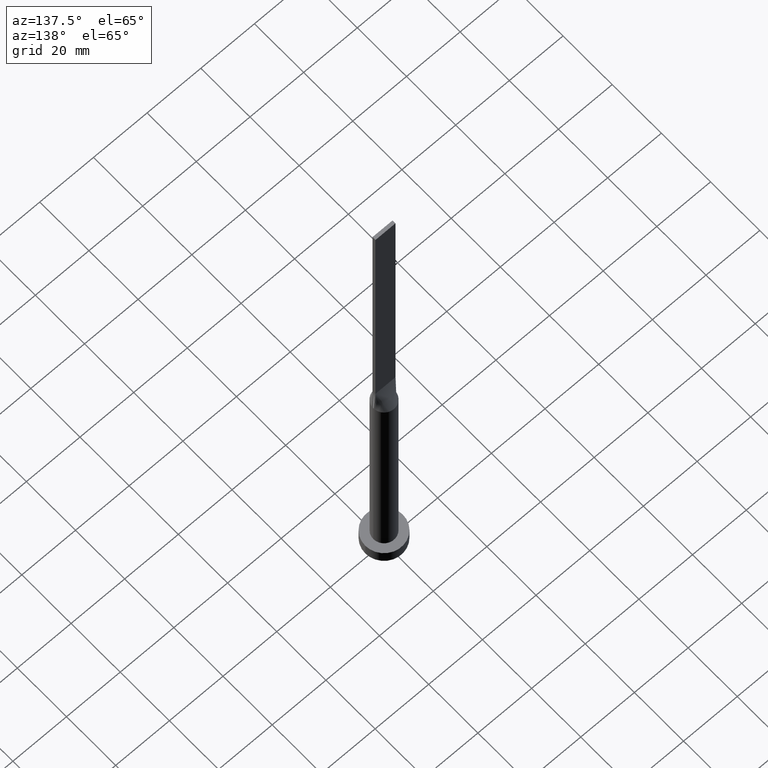
[diagram: clean part render]
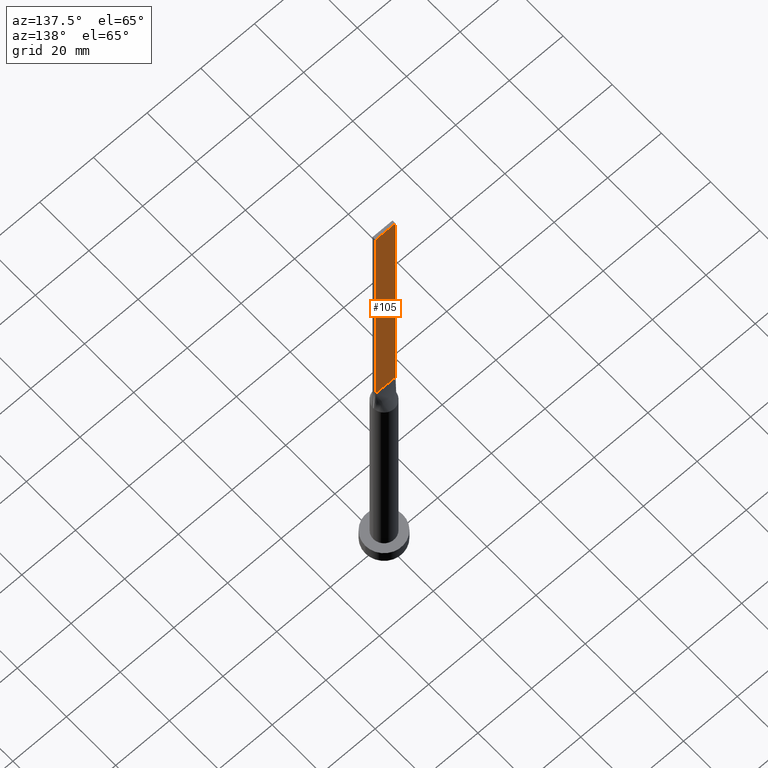
[diagram: same view with one face highlighted and labeled with its STEP entity id]
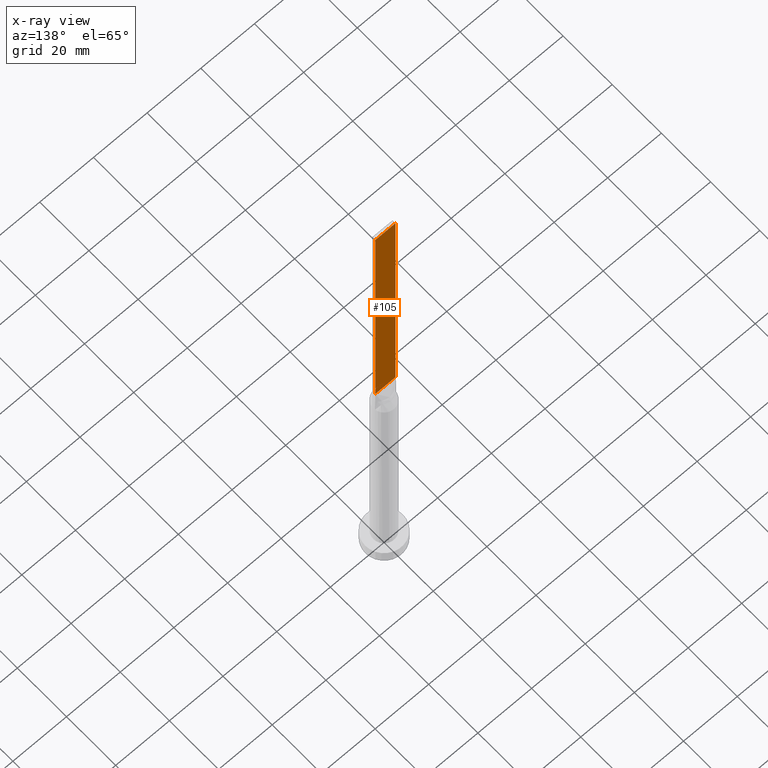
[diagram: x-ray of the same camera — body ghosted, the highlighted face saturated]
A machine part, auxiliary view. The second image highlights one B-rep face of the part: STEP entity #105.
The next image is the same camera in x-ray: the body ghosted, the highlighted face saturated — about 0% of this face is hidden behind the body in this view.
In plain terms, the highlighted planar face has unit normal (0, -1, 0).
Its self-contained STEP definition (entity closure, byte-faithful):
#1 = VECTOR ( 'NONE', #348, 1000.000000000000000 ) ;
#12 = ORIENTED_EDGE ( 'NONE', *, *, #301, .T. ) ;
#22 = ORIENTED_EDGE ( 'NONE', *, *, #514, .T. ) ;
#31 = AXIS2_PLACEMENT_3D ( 'NONE', #251, #484, #391 ) ;
#43 = EDGE_CURVE ( 'NONE', #52, #192, #254, .T. ) ;
#52 = VERTEX_POINT ( 'NONE', #198 ) ;
#55 = CARTESIAN_POINT ( 'NONE',  ( 3.750000000000000000, 0.6000000000000001998, 200.0000000000000000 ) ) ;
#70 = CARTESIAN_POINT ( 'NONE',  ( 3.750000000000000000, 0.6000000000000001998, 100.0000000000000000 ) ) ;
#100 = CARTESIAN_POINT ( 'NONE',  ( 3.750000000000000000, 0.6000000000000001998, 200.0000000000000000 ) ) ;
#105 = ADVANCED_FACE ( 'NONE', ( #160 ), #290, .F. ) ;
#119 = CARTESIAN_POINT ( 'NONE',  ( 3.750000000000000000, 0.6000000000000001998, 200.0000000000000000 ) ) ;
#137 = EDGE_CURVE ( 'NONE', #365, #52, #434, .T. ) ;
#140 = ORIENTED_EDGE ( 'NONE', *, *, #137, .F. ) ;
#150 = VERTEX_POINT ( 'NONE', #70 ) ;
#160 = FACE_OUTER_BOUND ( 'NONE', #462, .T. ) ;
#169 = CARTESIAN_POINT ( 'NONE',  ( -3.750000000000000000, 0.6000000000000001998, 200.0000000000000000 ) ) ;
#184 = VECTOR ( 'NONE', #390, 1000.000000000000000 ) ;
#192 = VERTEX_POINT ( 'NONE', #568 ) ;
#198 = CARTESIAN_POINT ( 'NONE',  ( -3.750000000000000000, 0.6000000000000001998, 200.0000000000000000 ) ) ;
#210 = LINE ( 'NONE', #392, #1 ) ;
#251 = CARTESIAN_POINT ( 'NONE',  ( 3.750000000000000000, 0.6000000000000001998, 200.0000000000000000 ) ) ;
#254 = LINE ( 'NONE', #169, #379 ) ;
#290 = PLANE ( 'NONE',  #31 ) ;
#301 = EDGE_CURVE ( 'NONE', #150, #192, #210, .T. ) ;
#324 = LINE ( 'NONE', #55, #454 ) ;
#337 = DIRECTION ( 'NONE',  ( -0.000000000000000000, -0.000000000000000000, -1.000000000000000000 ) ) ;
#348 = DIRECTION ( 'NONE',  ( -1.000000000000000000, -0.000000000000000000, -0.000000000000000000 ) ) ;
#365 = VERTEX_POINT ( 'NONE', #100 ) ;
#366 = DIRECTION ( 'NONE',  ( -0.000000000000000000, -0.000000000000000000, -1.000000000000000000 ) ) ;
#379 = VECTOR ( 'NONE', #337, 1000.000000000000000 ) ;
#390 = DIRECTION ( 'NONE',  ( -1.000000000000000000, 0.000000000000000000, 0.000000000000000000 ) ) ;
#391 = DIRECTION ( 'NONE',  ( 0.000000000000000000, -0.000000000000000000, -1.000000000000000000 ) ) ;
#392 = CARTESIAN_POINT ( 'NONE',  ( -3.750000000000000000, 0.6000000000000001998, 100.0000000000000000 ) ) ;
#434 = LINE ( 'NONE', #119, #184 ) ;
#454 = VECTOR ( 'NONE', #366, 1000.000000000000000 ) ;
#462 = EDGE_LOOP ( 'NONE', ( #12, #508, #140, #22 ) ) ;
#484 = DIRECTION ( 'NONE',  ( 0.000000000000000000, -1.000000000000000000, 0.000000000000000000 ) ) ;
#508 = ORIENTED_EDGE ( 'NONE', *, *, #43, .F. ) ;
#514 = EDGE_CURVE ( 'NONE', #365, #150, #324, .T. ) ;
#568 = CARTESIAN_POINT ( 'NONE',  ( -3.750000000000000000, 0.6000000000000001998, 100.0000000000000000 ) ) ;